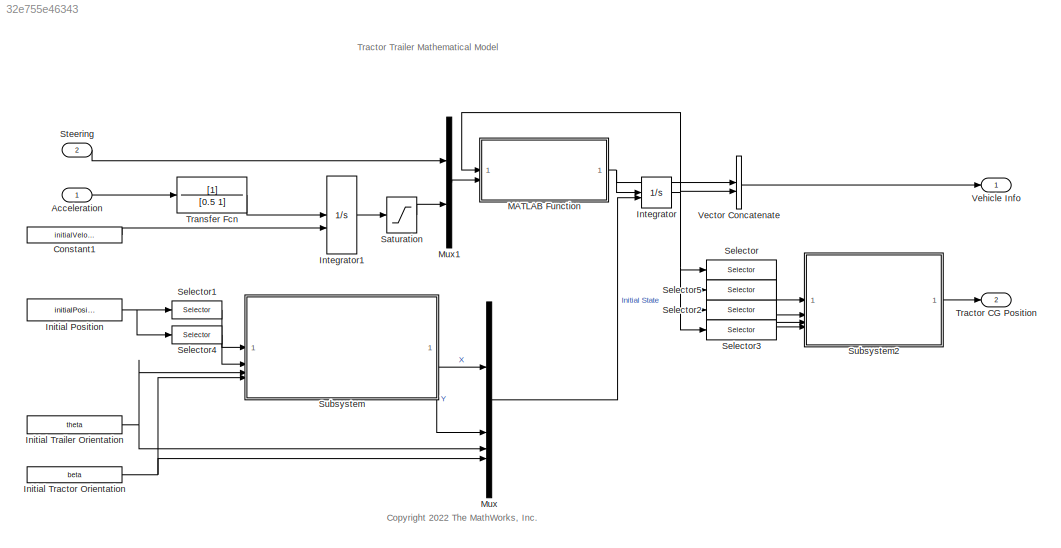
MODEL slx_32e755e46343
KIND model
CONFIG AbsTol = auto
CONFIG EnableMultiTasking = off
CONFIG FixedStep = auto
CONFIG MaxStep = auto
CONFIG MinStep = auto
CONFIG RelTol = 1e-3
CONFIG SampleTimeConstraint = Unconstrained
CONFIG SolverName = VariableStepAuto
CONFIG StartTime = 0.0
CONFIG StopTime = 10.0
WORKSPACE source: mxarray member
WORKSPACE beta: Simulink.Parameter (value not decoded)
WORKSPACE initialPosition: Simulink.Parameter (value not decoded)
WORKSPACE initialVelocity: Simulink.Parameter (value not decoded)
WORKSPACE theta: Simulink.Parameter (value not decoded)
BLOCK [Inport] Acceleration
BLOCK [Constant] Constant1
  Value = initialVelocity(1)
BLOCK [Constant] Initial Position
  Value = initialPosition
BLOCK [Constant] Initial Tractor Orientation
  Value = beta
BLOCK [Constant] Initial Trailer Orientation
  Value = theta
BLOCK [Integrator] Integrator
  InitialConditionSource = external
BLOCK [Integrator] Integrator1
  InitialConditionSource = external
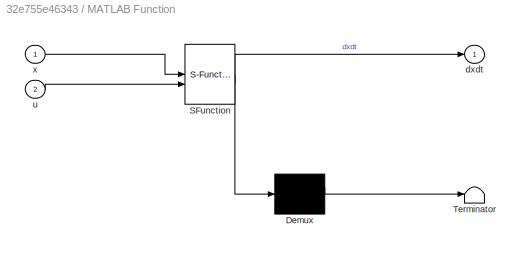
BLOCK [SubSystem] MATLAB Function
  ErrorFcn = Stateflow.Translate.translate
  PermitHierarchicalResolution = ExplicitOnly
  SFBlockType = MATLAB Function
  TreatAsAtomicUnit = on
BLOCK [Demux] MATLAB Function/ Demux 
  Outputs = 1
BLOCK [S-Function] MATLAB Function/ SFunction 
  EnableBusSupport = off
  FunctionName = sf_sfun
  Parameters = vehicleDimension
  PortCounts = [2 2]
  SFcnIsStateOwnerBlock = off
  SFunctionDeploymentMode = off
  Tag = Stateflow S-Function 5
BLOCK [Terminator] MATLAB Function/ Terminator 
BLOCK [Outport] MATLAB Function/dxdt
BLOCK [Inport] MATLAB Function/u
  Port = 2
BLOCK [Inport] MATLAB Function/x
BLOCK [Mux] Mux
  DisplayOption = bar
BLOCK [Mux] Mux1
  DisplayOption = bar
  Inputs = 2
BLOCK [Saturate] Saturation
  LowerLimit = 0
  UpperLimit = 30
BLOCK [Selector] Selector
  IndexOptions = Index vector (dialog)
  Indices = 1
  InputPortWidth = 4
  OutputSizes = 1
BLOCK [Selector] Selector1
  IndexOptions = Index vector (dialog)
  Indices = 1
  InputPortWidth = 3
  OutputSizes = 1
BLOCK [Selector] Selector2
  IndexOptions = Index vector (dialog)
  Indices = 3
  InputPortWidth = 4
  OutputSizes = 1
BLOCK [Selector] Selector3
  IndexOptions = Index vector (dialog)
  Indices = 4
  InputPortWidth = 4
  OutputSizes = 1
BLOCK [Selector] Selector4
  IndexOptions = Index vector (dialog)
  Indices = 2
  InputPortWidth = 3
  OutputSizes = 1
BLOCK [Selector] Selector5
  IndexOptions = Index vector (dialog)
  Indices = 2
  InputPortWidth = 4
  OutputSizes = 1
BLOCK [Inport] Steering
  Port = 2
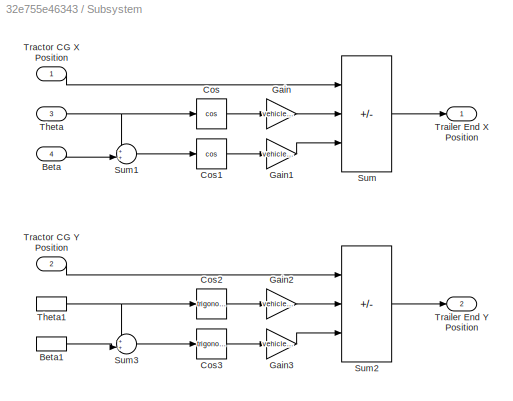
BLOCK [SubSystem] Subsystem
BLOCK [Inport] Subsystem/Beta
  Port = 4
BLOCK [InportShadow] Subsystem/Beta1
  Port = 4
BLOCK [Trigonometry] Subsystem/Cos
  Operator = cos
BLOCK [Trigonometry] Subsystem/Cos1
  Operator = cos
BLOCK [Trigonometry] Subsystem/Cos2
BLOCK [Trigonometry] Subsystem/Cos3
BLOCK [Gain] Subsystem/Gain
  Gain = vehicleDimension.TrailerLength - vehicleDimension.TrailerHitchToFront
BLOCK [Gain] Subsystem/Gain1
  Gain = vehicleDimension.InterConnection + vehicleDimension.TractorLength - vehicleDimension.TractorEndToHitch - tractor.FrontAxlePositionfromCG - 1.3
BLOCK [Gain] Subsystem/Gain2
  Gain = vehicleDimension.TrailerLength - vehicleDimension.TrailerHitchToFront
BLOCK [Gain] Subsystem/Gain3
  Gain = vehicleDimension.InterConnection + vehicleDimension.TractorLength - vehicleDimension.TractorEndToHitch - tractor.FrontAxlePositionfromCG - 1.3
BLOCK [Sum] Subsystem/Sum
  IconShape = rectangular
  Inputs = +--
BLOCK [Sum] Subsystem/Sum1
  Inputs = ++|
BLOCK [Sum] Subsystem/Sum2
  IconShape = rectangular
  Inputs = +--
BLOCK [Sum] Subsystem/Sum3
  Inputs = ++|
BLOCK [Inport] Subsystem/Theta
  Port = 3
BLOCK [InportShadow] Subsystem/Theta1
  Port = 3
BLOCK [Inport] Subsystem/Tractor CG X Position
BLOCK [Inport] Subsystem/Tractor CG Y Position
  Port = 2
BLOCK [Outport] Subsystem/Trailer End X Position
BLOCK [Outport] Subsystem/Trailer End Y Position
  Port = 2
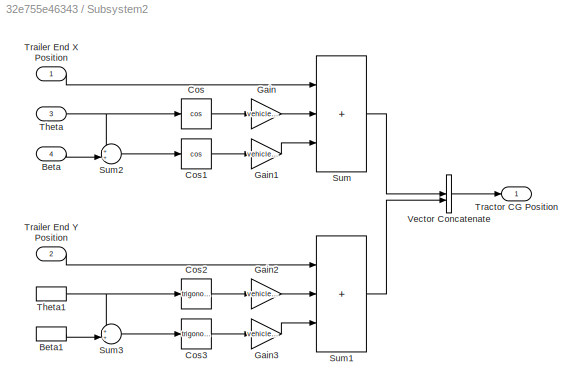
BLOCK [SubSystem] Subsystem2
BLOCK [Inport] Subsystem2/Beta
  Port = 4
BLOCK [InportShadow] Subsystem2/Beta1
  Port = 4
BLOCK [Trigonometry] Subsystem2/Cos
  Operator = cos
BLOCK [Trigonometry] Subsystem2/Cos1
  Operator = cos
BLOCK [Trigonometry] Subsystem2/Cos2
BLOCK [Trigonometry] Subsystem2/Cos3
BLOCK [Gain] Subsystem2/Gain
  Gain = vehicleDimension.TrailerLength - vehicleDimension.TrailerHitchToFront
BLOCK [Gain] Subsystem2/Gain1
  Gain = vehicleDimension.InterConnection + vehicleDimension.TractorLength - vehicleDimension.TractorEndToHitch - tractor.FrontAxlePositionfromCG - 1.3
BLOCK [Gain] Subsystem2/Gain2
  Gain = vehicleDimension.TrailerLength - vehicleDimension.TrailerHitchToFront
BLOCK [Gain] Subsystem2/Gain3
  Gain = vehicleDimension.InterConnection + vehicleDimension.TractorLength - vehicleDimension.TractorEndToHitch - tractor.FrontAxlePositionfromCG - 1.3
BLOCK [Sum] Subsystem2/Sum
  IconShape = rectangular
  Inputs = +++
BLOCK [Sum] Subsystem2/Sum1
  IconShape = rectangular
  Inputs = +++
BLOCK [Sum] Subsystem2/Sum2
  Inputs = ++|
BLOCK [Sum] Subsystem2/Sum3
  Inputs = ++|
BLOCK [Inport] Subsystem2/Theta
  Port = 3
BLOCK [InportShadow] Subsystem2/Theta1
  Port = 3
BLOCK [Outport] Subsystem2/Tractor CG Position
BLOCK [Inport] Subsystem2/Trailer End X Position
BLOCK [Inport] Subsystem2/Trailer End Y Position
  Port = 2
BLOCK [Concatenate] Subsystem2/Vector Concatenate
BLOCK [Outport] Tractor CG Position
  Port = 2
BLOCK [TransferFcn] Transfer Fcn
  Denominator = [0.5 1]
BLOCK [Concatenate] Vector Concatenate
BLOCK [Outport] Vehicle Info
ANNOTATION (root): <copyright redacted>
ANNOTATION (root): Tractor Trailer Mathematical Model
LINE Acceleration:1 -> Transfer Fcn:1
LINE Constant1:1 -> Integrator1:2
NET Initial Position:1 -> Selector1:1, Selector4:1
NET Initial Tractor Orientation:1 -> Mux:4, Subsystem:4
NET Initial Trailer Orientation:1 -> Mux:3, Subsystem:3
LINE Integrator1:1 -> Saturation:1
NET Integrator:1 -> MATLAB Function:1, Selector2:1, Selector3:1, Selector5:1, Selector:1, Vector Concatenate:2
NET MATLAB Function:1 -> Integrator:1, Vector Concatenate:1
LINE Mux1:1 -> MATLAB Function:2
LINE Mux:1 -> Integrator:2
LINE Saturation:1 -> Mux1:2
LINE Selector1:1 -> Subsystem:1
LINE Selector2:1 -> Subsystem2:3
LINE Selector3:1 -> Subsystem2:4
LINE Selector4:1 -> Subsystem:2
LINE Selector5:1 -> Subsystem2:2
LINE Selector:1 -> Subsystem2:1
LINE Steering:1 -> Mux1:1
LINE Subsystem/Beta1:1 -> Subsystem/Sum3:2
LINE Subsystem/Beta:1 -> Subsystem/Sum1:2
LINE Subsystem/Cos1:1 -> Subsystem/Gain1:1
LINE Subsystem/Cos2:1 -> Subsystem/Gain2:1
LINE Subsystem/Cos3:1 -> Subsystem/Gain3:1
LINE Subsystem/Cos:1 -> Subsystem/Gain:1
LINE Subsystem/Gain1:1 -> Subsystem/Sum:3
LINE Subsystem/Gain2:1 -> Subsystem/Sum2:2
LINE Subsystem/Gain3:1 -> Subsystem/Sum2:3
LINE Subsystem/Gain:1 -> Subsystem/Sum:2
LINE Subsystem/Sum1:1 -> Subsystem/Cos1:1
LINE Subsystem/Sum2:1 -> Subsystem/Trailer End Y Position:1
LINE Subsystem/Sum3:1 -> Subsystem/Cos3:1
LINE Subsystem/Sum:1 -> Subsystem/Trailer End X Position:1
NET Subsystem/Theta1:1 -> Subsystem/Cos2:1, Subsystem/Sum3:1
NET Subsystem/Theta:1 -> Subsystem/Cos:1, Subsystem/Sum1:1
LINE Subsystem/Tractor CG X Position:1 -> Subsystem/Sum:1
LINE Subsystem/Tractor CG Y Position:1 -> Subsystem/Sum2:1
LINE Subsystem2/Beta1:1 -> Subsystem2/Sum3:2
LINE Subsystem2/Beta:1 -> Subsystem2/Sum2:2
LINE Subsystem2/Cos1:1 -> Subsystem2/Gain1:1
LINE Subsystem2/Cos2:1 -> Subsystem2/Gain2:1
LINE Subsystem2/Cos3:1 -> Subsystem2/Gain3:1
LINE Subsystem2/Cos:1 -> Subsystem2/Gain:1
LINE Subsystem2/Gain1:1 -> Subsystem2/Sum:3
LINE Subsystem2/Gain2:1 -> Subsystem2/Sum1:2
LINE Subsystem2/Gain3:1 -> Subsystem2/Sum1:3
LINE Subsystem2/Gain:1 -> Subsystem2/Sum:2
LINE Subsystem2/Sum1:1 -> Subsystem2/Vector Concatenate:2
LINE Subsystem2/Sum2:1 -> Subsystem2/Cos1:1
LINE Subsystem2/Sum3:1 -> Subsystem2/Cos3:1
LINE Subsystem2/Sum:1 -> Subsystem2/Vector Concatenate:1
NET Subsystem2/Theta1:1 -> Subsystem2/Cos2:1, Subsystem2/Sum3:1
NET Subsystem2/Theta:1 -> Subsystem2/Cos:1, Subsystem2/Sum2:1
LINE Subsystem2/Trailer End X Position:1 -> Subsystem2/Sum:1
LINE Subsystem2/Trailer End Y Position:1 -> Subsystem2/Sum1:1
LINE Subsystem2/Vector Concatenate:1 -> Subsystem2/Tractor CG Position:1
LINE Subsystem2:1 -> Tractor CG Position:1
LINE Subsystem:1 -> Mux:1
LINE Subsystem:2 -> Mux:2
LINE Transfer Fcn:1 -> Integrator1:1
LINE Vector Concatenate:1 -> Vehicle Info:1
note: NET lines group one-source signal fan-out (src -> all destinations, sorted); 1:1 wires keep LINE
CHART MATLAB Function states=1 transitions=1
  STATE_LABEL 'eML_blk_kernel()'
  STATE_LABEL 'SCRIPT:\nfunction dxdt = stateFcnTractorTrailer(x,u,vehicleDimension)%#codegen\ndxdt = zeros(4,1);\ndxdt = helperStateFcnTractorTrailer(x, u, vehicleDimension.TractorLength - vehicleDimension.TractorEndToHitch , vehicleDimension.TrailerLength - vehicleDimension.TrailerHitchToFront, vehicleDimension.InterConnection);\n\n'
CHART  states=0 transitions=0
